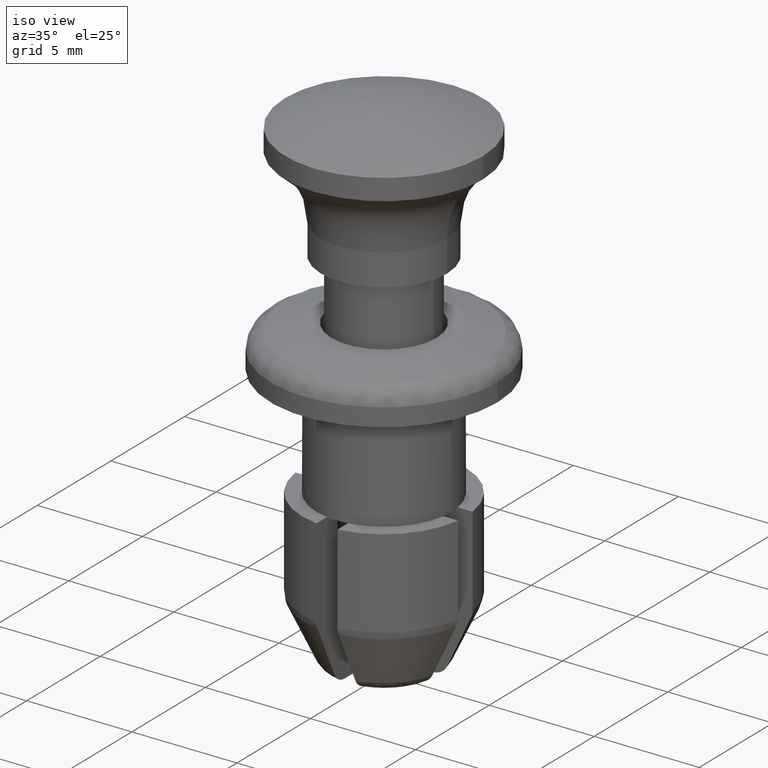
[diagram: clean part render]
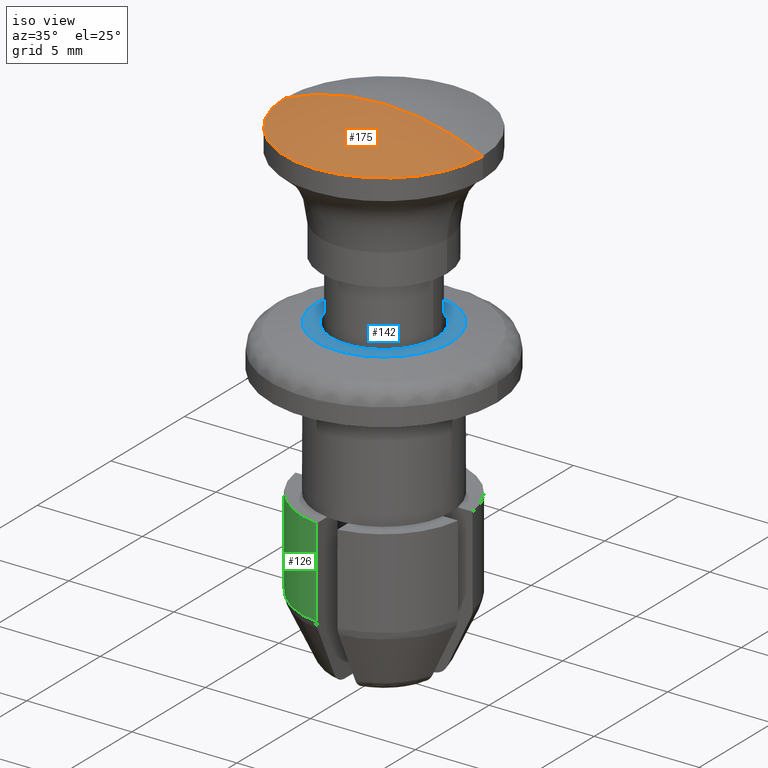
[diagram: same view with three faces highlighted in distinct colors, each labeled with its STEP entity id]
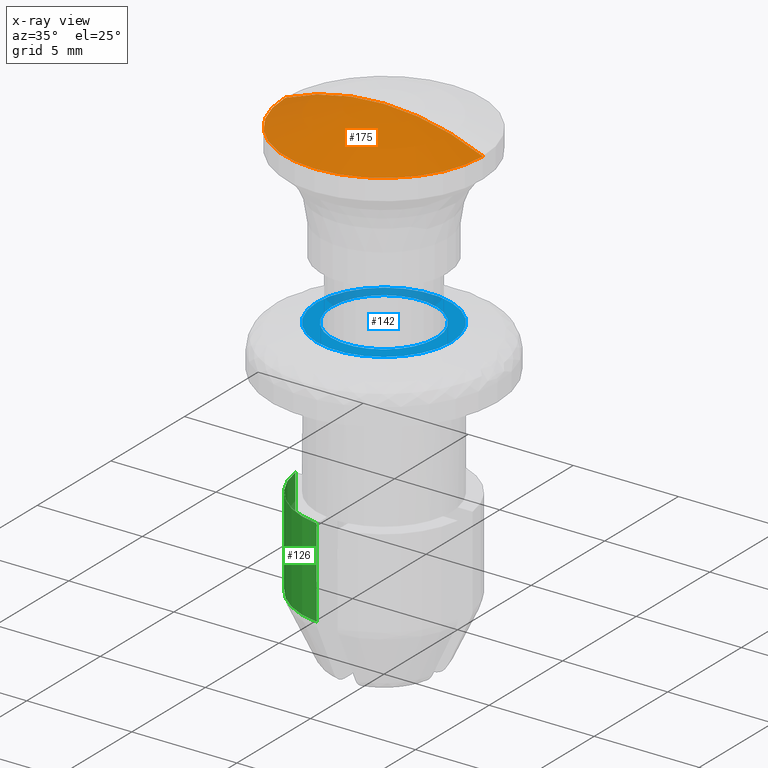
[diagram: x-ray of the same camera — body ghosted, the three highlighted faces saturated]
A machine part, iso view with three faces highlighted in distinct colors.
The next image is the same camera in x-ray (body ghosted, the three faces saturated) — at least one of them is partly hidden behind the body in this view.
Their STEP definitions:

[orange] entity #175 — the highlighted spherical surface has radius 11.545 mm.
#175=ADVANCED_FACE('',(#828),#827,.T.);
#827=SPHERICAL_SURFACE('',#1454,1.15450000000E+01);
#828=FACE_OUTER_BOUND('',#1455,.T.);
#1451=CARTESIAN_POINT('',(0.00000000000E+00,0.00000000000E+00,-5.04500000000E+00));
#1452=DIRECTION('',(0.00000000000E+00,0.00000000000E+00,-1.00000000000E+00));
#1453=DIRECTION('',(1.00000000000E+00,4.04453249759E-21,0.00000000000E+00));
#1454=AXIS2_PLACEMENT_3D('',#1451,#1452,#1453);
#1455=EDGE_LOOP('',(#1939,#1940,#1941));
#1939=ORIENTED_EDGE('',*,*,#2176,.T.);
#1940=ORIENTED_EDGE('',*,*,#2175,.F.);
#1941=ORIENTED_EDGE('',*,*,#2177,.F.);
#2175=EDGE_CURVE('',#3297,#3296,#3330,.T.);
#2176=EDGE_CURVE('',#3336,#3296,#3337,.T.);
#2177=EDGE_CURVE('',#3336,#3297,#3343,.T.);
#3296=VERTEX_POINT('',#4235);
#3297=VERTEX_POINT('',#4236);
#3330=CIRCLE('',#4258,4.70000795576E+00);
#3336=VERTEX_POINT('',#4259);
#3337=(BOUNDED_CURVE() B_SPLINE_CURVE(2,(#4260,#4261,#4262),.UNSPECIFIED.,.F.,.F.) B_SPLINE_CURVE_WITH_KNOTS((3,3),(0.00000000000E+00,9.99997965990E-01),.UNSPECIFIED.) CURVE() GEOMETRIC_REPRESENTATION_ITEM() RATIONAL_B_SPLINE_CURVE((1.00000000000E+00,9.78105762392E-01,1.00000000000E+00)) REPRESENTATION_ITEM('') );
#3343=(BOUNDED_CURVE() B_SPLINE_CURVE(2,(#4263,#4264,#4265),.UNSPECIFIED.,.F.,.F.) B_SPLINE_CURVE_WITH_KNOTS((3,3),(0.00000000000E+00,1.00000000000E+00),.UNSPECIFIED.) CURVE() GEOMETRIC_REPRESENTATION_ITEM() RATIONAL_B_SPLINE_CURVE((7.50000000000E-01,7.33579321794E-01,7.50000000000E-01)) REPRESENTATION_ITEM('') );
#4235=CARTESIAN_POINT('',(-4.70000795576E+00,0.00000000000E+00,5.49999645404E+00));
#4236=CARTESIAN_POINT('',(4.70000795576E+00,2.96059473233E-16,5.49999645404E+00));
#4255=CARTESIAN_POINT('',(0.00000000000E+00,0.00000000000E+00,5.49999645404E+00));
#4256=DIRECTION('',(-0.00000000000E+00,0.00000000000E+00,-1.00000000000E+00));
#4257=DIRECTION('',(-1.00000000000E+00,-1.22460635382E-16,0.00000000000E+00));
#4258=AXIS2_PLACEMENT_3D('',#4255,#4256,#4257);
#4259=CARTESIAN_POINT('',(-7.06904017744E-16,8.65679151672E-32,6.50000000000E+00));
#4260=CARTESIAN_POINT('',(-7.06904017744E-16,8.65679151672E-32,6.50000000000E+00));
#4261=CARTESIAN_POINT('',(-2.45639263902E+00,3.00811403323E-16,6.50000000000E+00));
#4262=CARTESIAN_POINT('',(-4.70001688281E+00,5.75567053777E-16,5.49999247516E+00));
#4263=CARTESIAN_POINT('',(7.06904017744E-16,-9.86076131526E-32,6.50000000000E+00));
#4264=CARTESIAN_POINT('',(2.45639263902E+00,-3.02686564804E-16,6.50000000000E+00));
#4265=CARTESIAN_POINT('',(4.70001688281E+00,-8.88178419700E-16,5.49999247516E+00));

[blue] entity #142 — the highlighted planar face has unit normal (0, 0, -1).
#142=ADVANCED_FACE('',(#493,#494),#492,.F.);
#492=PLANE('',#1228);
#493=FACE_OUTER_BOUND('',#1229,.T.);
#494=FACE_BOUND('',#1230,.T.);
#1225=CARTESIAN_POINT('',(7.36000000000E+00,-6.65107510106E+00,0.00000000000E+00));
#1226=DIRECTION('',(0.00000000000E+00,0.00000000000E+00,-1.00000000000E+00));
#1227=DIRECTION('',(-1.00000000000E+00,0.00000000000E+00,0.00000000000E+00));
#1228=AXIS2_PLACEMENT_3D('',#1225,#1226,#1227);
#1229=EDGE_LOOP('',(#1746,#1747));
#1230=EDGE_LOOP('',(#1748,#1749));
#1746=ORIENTED_EDGE('',*,*,#2100,.F.);
#1747=ORIENTED_EDGE('',*,*,#2101,.F.);
#1748=ORIENTED_EDGE('',*,*,#2102,.F.);
#1749=ORIENTED_EDGE('',*,*,#2103,.F.);
#2100=EDGE_CURVE('',#2836,#2837,#2838,.T.);
#2101=EDGE_CURVE('',#2837,#2836,#2844,.T.);
#2102=EDGE_CURVE('',#2850,#2851,#2852,.T.);
#2103=EDGE_CURVE('',#2851,#2850,#2858,.T.);
#2836=VERTEX_POINT('',#3951);
#2837=VERTEX_POINT('',#3952);
#2838=CIRCLE('',#3956,3.20000000000E+00);
#2844=CIRCLE('',#3960,3.20000000000E+00);
#2850=VERTEX_POINT('',#3961);
#2851=VERTEX_POINT('',#3962);
#2852=CIRCLE('',#3966,2.50000000000E+00);
#2858=CIRCLE('',#3970,2.50000000000E+00);
#3951=CARTESIAN_POINT('',(3.20000000000E+00,1.48029736617E-16,0.00000000000E+00));
#3952=CARTESIAN_POINT('',(-3.20000000000E+00,0.00000000000E+00,0.00000000000E+00));
#3953=CARTESIAN_POINT('',(0.00000000000E+00,0.00000000000E+00,0.00000000000E+00));
#3954=DIRECTION('',(-0.00000000000E+00,0.00000000000E+00,-1.00000000000E+00));
#3955=DIRECTION('',(-1.00000000000E+00,-1.22460635382E-16,0.00000000000E+00));
#3956=AXIS2_PLACEMENT_3D('',#3953,#3954,#3955);
#3957=CARTESIAN_POINT('',(0.00000000000E+00,0.00000000000E+00,0.00000000000E+00));
#3958=DIRECTION('',(-0.00000000000E+00,0.00000000000E+00,-1.00000000000E+00));
#3959=DIRECTION('',(-1.00000000000E+00,-1.22460635382E-16,0.00000000000E+00));
#3960=AXIS2_PLACEMENT_3D('',#3957,#3958,#3959);
#3961=CARTESIAN_POINT('',(2.50000000000E+00,2.96059473233E-16,0.00000000000E+00));
#3962=CARTESIAN_POINT('',(-2.50000000000E+00,0.00000000000E+00,0.00000000000E+00));
#3963=CARTESIAN_POINT('',(0.00000000000E+00,0.00000000000E+00,0.00000000000E+00));
#3964=DIRECTION('',(0.00000000000E+00,0.00000000000E+00,1.00000000000E+00));
#3965=DIRECTION('',(-1.00000000000E+00,-1.22460635382E-16,0.00000000000E+00));
#3966=AXIS2_PLACEMENT_3D('',#3963,#3964,#3965);
#3967=CARTESIAN_POINT('',(0.00000000000E+00,0.00000000000E+00,0.00000000000E+00));
#3968=DIRECTION('',(0.00000000000E+00,0.00000000000E+00,1.00000000000E+00));
#3969=DIRECTION('',(-1.00000000000E+00,-1.22460635382E-16,0.00000000000E+00));
#3970=AXIS2_PLACEMENT_3D('',#3967,#3968,#3969);

[green] entity #126 — the highlighted cylindrical surface (partial cylindrical patch) has radius 3.9 mm, axis along (0, 0, 1).
#126=ADVANCED_FACE('',(#333),#332,.T.);
#332=CYLINDRICAL_SURFACE('',#1087,3.90000000000E+00);
#333=FACE_OUTER_BOUND('',#1088,.T.);
#1084=CARTESIAN_POINT('',(0.00000000000E+00,0.00000000000E+00,0.00000000000E+00));
#1085=DIRECTION('',(-0.00000000000E+00,-0.00000000000E+00,1.00000000000E+00));
#1086=DIRECTION('',(1.00000000000E+00,-0.00000000000E+00,-0.00000000000E+00));
#1087=AXIS2_PLACEMENT_3D('',#1084,#1085,#1086);
#1088=EDGE_LOOP('',(#1682,#1683,#1684,#1685));
#1682=ORIENTED_EDGE('',*,*,#2006,.F.);
#1683=ORIENTED_EDGE('',*,*,#2061,.F.);
#1684=ORIENTED_EDGE('',*,*,#2019,.F.);
#1685=ORIENTED_EDGE('',*,*,#2047,.T.);
#2006=EDGE_CURVE('',#2202,#2203,#2204,.T.);
#2019=EDGE_CURVE('',#2292,#2293,#2294,.T.);
#2047=EDGE_CURVE('',#2292,#2203,#2484,.T.);
#2061=EDGE_CURVE('',#2293,#2202,#2580,.T.);
#2202=VERTEX_POINT('',#3501);
#2203=VERTEX_POINT('',#3502);
#2204=LINE('',#3503,#3504);
#2292=VERTEX_POINT('',#3567);
#2293=VERTEX_POINT('',#3568);
#2294=LINE('',#3569,#3570);
#2484=CIRCLE('',#3698,3.90000000000E+00);
#2580=CIRCLE('',#3760,3.90000000000E+00);
#3501=CARTESIAN_POINT('',(-3.86781592116E+00,-5.00000000000E-01,-1.15339000000E+01));
#3502=CARTESIAN_POINT('',(-3.86781592116E+00,-5.00000000000E-01,-7.30000000000E+00));
#3503=CARTESIAN_POINT('',(-3.86781592116E+00,-5.00000000000E-01,-1.15339000000E+01));
#3504=VECTOR('',#3505,4.23390000000E+00);
#3505=DIRECTION('',(0.00000000000E+00,0.00000000000E+00,1.00000000000E+00));
#3567=CARTESIAN_POINT('',(-5.00000000000E-01,-3.86781592116E+00,-7.30000000000E+00));
#3568=CARTESIAN_POINT('',(-5.00000000000E-01,-3.86781592116E+00,-1.15339000000E+01));
#3569=CARTESIAN_POINT('',(-5.00000000000E-01,-3.86781592116E+00,-7.30000000000E+00));
#3570=VECTOR('',#3571,4.23390000000E+00);
#3571=DIRECTION('',(0.00000000000E+00,0.00000000000E+00,-1.00000000000E+00));
#3695=CARTESIAN_POINT('',(0.00000000000E+00,0.00000000000E+00,-7.30000000000E+00));
#3696=DIRECTION('',(0.00000000000E+00,0.00000000000E+00,-1.00000000000E+00));
#3697=DIRECTION('',(1.00000000000E+00,-0.00000000000E+00,-0.00000000000E+00));
#3698=AXIS2_PLACEMENT_3D('',#3695,#3696,#3697);
#3757=CARTESIAN_POINT('',(0.00000000000E+00,0.00000000000E+00,-1.15339000000E+01));
#3758=DIRECTION('',(0.00000000000E+00,0.00000000000E+00,-1.00000000000E+00));
#3759=DIRECTION('',(1.00000000000E+00,-0.00000000000E+00,-0.00000000000E+00));
#3760=AXIS2_PLACEMENT_3D('',#3757,#3758,#3759);